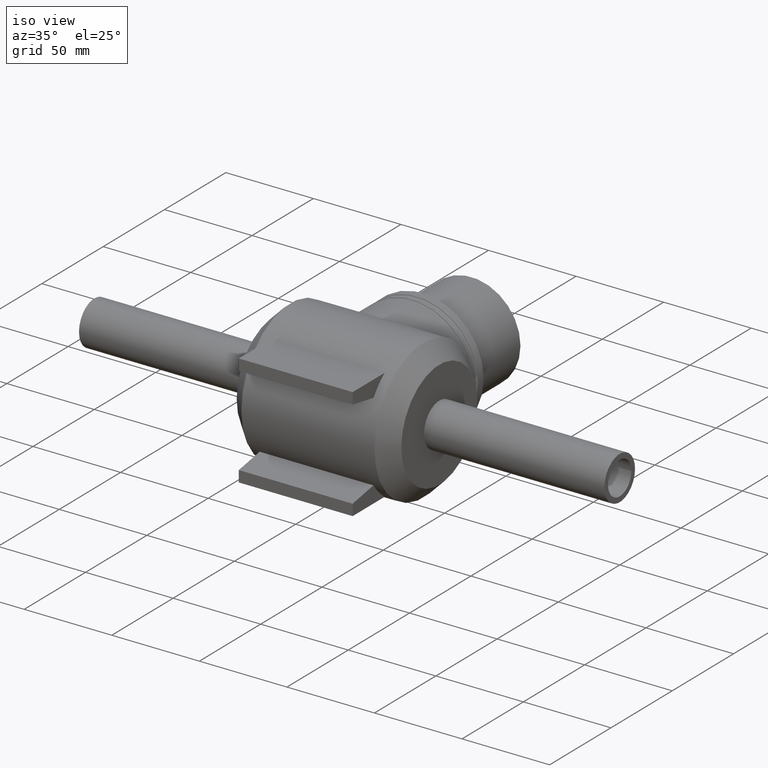
[diagram: clean part render]
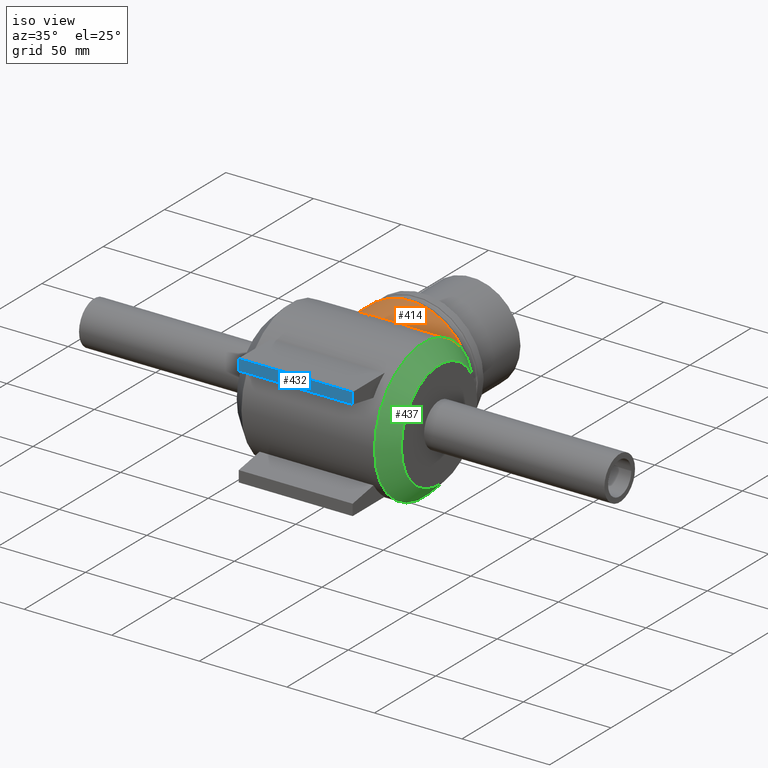
[diagram: same view with three faces highlighted in distinct colors, each labeled with its STEP entity id]
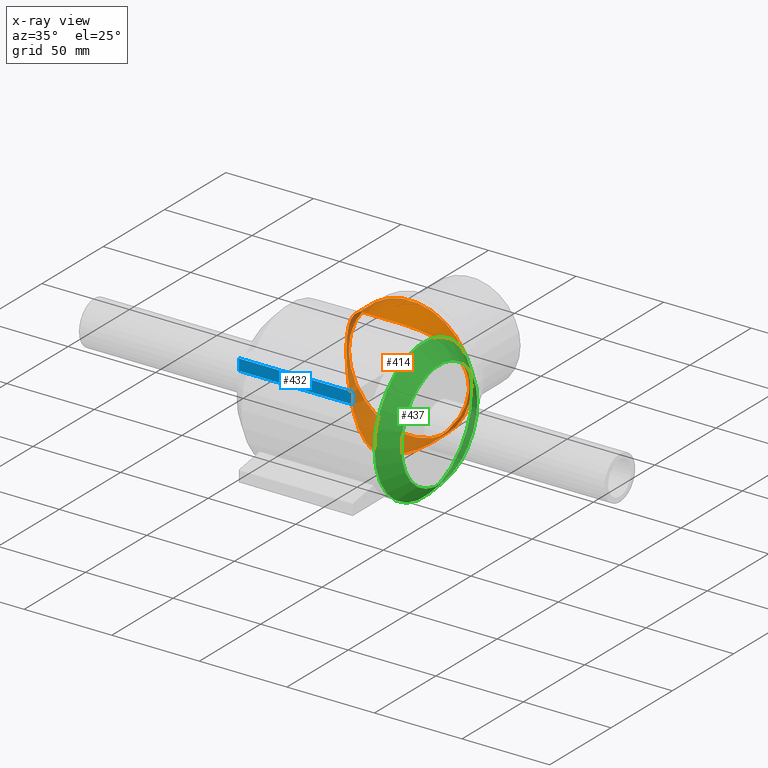
[diagram: x-ray of the same camera — body ghosted, the three highlighted faces saturated]
A machine part, iso view with three faces highlighted in distinct colors.
The next image is the same camera in x-ray (body ghosted, the three faces saturated) — at least one of them is partly hidden behind the body in this view.
Their STEP definitions:

[orange] entity #414 — the highlighted cylindrical surface (bore or boss wall) has radius 35 mm, axis along (0, 1, 0).
#78=FACE_BOUND('',#146,.T.);
#103=CYLINDRICAL_SURFACE('',#449,35.);
#113=FACE_OUTER_BOUND('',#145,.T.);
#145=EDGE_LOOP('',(#320));
#146=EDGE_LOOP('',(#321));
#201=B_SPLINE_CURVE_WITH_KNOTS('',3,(#808,#809,#810,#811,#812,#813,#814,
#815,#816,#817,#818,#819,#820,#821,#822,#823,#824,#825,#826,#827,#828,#829,
#830,#831,#832,#833,#834,#835,#836,#837,#838,#839),.UNSPECIFIED.,.T.,.F.,
(4,1,1,1,1,1,1,1,1,1,1,1,1,1,1,1,1,1,1,1,1,1,1,1,1,1,1,1,1,4),(11.6170748413418,
12.0319703713897,12.4468659014376,13.2766569615335,14.1064480216293,14.9362390817252,
15.766030141821,16.5958212019169,17.4256122620127,18.2554033221085,19.3617914022363,
20.4681794823641,21.5745675624919,22.1277616025558,22.6809556426197,23.2341496826836,
23.7873437227475,24.3405377628114,24.8937318028753,26.0001198830031,27.1065079631309,
28.2128960432587,29.3192841233864,30.4256722035142,31.532060283642,32.3618513437379,
33.1916424038337,34.0214334639296,34.4363289939775,34.8512245240254),
 .UNSPECIFIED.);
#204=CIRCLE('',#450,35.);
#230=VERTEX_POINT('',#806);
#231=VERTEX_POINT('',#873);
#269=EDGE_CURVE('',#230,#230,#201,.T.);
#271=EDGE_CURVE('',#231,#231,#204,.T.);
#320=ORIENTED_EDGE('',*,*,#271,.F.);
#321=ORIENTED_EDGE('',*,*,#269,.F.);
#414=ADVANCED_FACE('',(#113,#78),#103,.T.);
#449=AXIS2_PLACEMENT_3D('',#872,#510,#511);
#450=AXIS2_PLACEMENT_3D('',#874,#512,#513);
#510=DIRECTION('center_axis',(0.,1.,0.));
#511=DIRECTION('ref_axis',(-1.,0.,0.));
#512=DIRECTION('center_axis',(0.,1.,0.));
#513=DIRECTION('ref_axis',(1.,0.,0.));
#806=CARTESIAN_POINT('',(-9.71445146547012E-16,19.723082923316,-35.));
#808=CARTESIAN_POINT('Ctrl Pts',(6.35637005140549E-6,19.7228363058308,-35.0000651068193));
#809=CARTESIAN_POINT('Ctrl Pts',(1.41770960995416,19.7228296530212,-35.0000754093829));
#810=CARTESIAN_POINT('Ctrl Pts',(4.253032800528,20.0625833711809,-34.8252998175546));
#811=CARTESIAN_POINT('Ctrl Pts',(9.59639809311812,21.8643460229017,-33.8404280733019));
#812=CARTESIAN_POINT('Ctrl Pts',(15.5309686456312,25.3195107370692,-31.6506595587825));
#813=CARTESIAN_POINT('Ctrl Pts',(21.720745649299,29.9041496460569,-27.7663579441096));
#814=CARTESIAN_POINT('Ctrl Pts',(27.0620155121982,34.3289230444518,-22.6183211991996));
#815=CARTESIAN_POINT('Ctrl Pts',(31.3744934770868,38.1105298678421,-16.1778340679703));
#816=CARTESIAN_POINT('Ctrl Pts',(34.2973659476584,40.7560911850973,-8.50425736904313));
#817=CARTESIAN_POINT('Ctrl Pts',(35.3528286367807,41.7229546455388,-0.00124623633672408));
#818=CARTESIAN_POINT('Ctrl Pts',(34.1784034189927,40.6483248008202,9.45882450359534));
#819=CARTESIAN_POINT('Ctrl Pts',(30.2294812889465,37.0720997484268,18.6435933358859));
#820=CARTESIAN_POINT('Ctrl Pts',(23.7076232711279,31.4678422167857,26.3553599183604));
#821=CARTESIAN_POINT('Ctrl Pts',(16.9884063026758,26.2919560593155,30.9071145575778));
#822=CARTESIAN_POINT('Ctrl Pts',(10.8005799278557,22.5567780195498,33.4225659708655));
#823=CARTESIAN_POINT('Ctrl Pts',(5.66245122782071,20.3453707010791,34.6844884685977));
#824=CARTESIAN_POINT('Ctrl Pts',(-0.00159153167616837,19.4088630714124,
35.1586891707371));
#825=CARTESIAN_POINT('Ctrl Pts',(-5.66532800799418,20.3451734655569,34.6841881490309));
#826=CARTESIAN_POINT('Ctrl Pts',(-10.8031274678309,22.5584756826982,33.4219954523097));
#827=CARTESIAN_POINT('Ctrl Pts',(-16.9896160967816,26.2929826328218,30.9051689690559));
#828=CARTESIAN_POINT('Ctrl Pts',(-23.7110727205367,31.472775668957,26.3543692310231));
#829=CARTESIAN_POINT('Ctrl Pts',(-30.2284337427862,37.0700224412913,18.6382580152721));
#830=CARTESIAN_POINT('Ctrl Pts',(-34.5443831973892,40.9805194434947,8.62505270853596));
#831=CARTESIAN_POINT('Ctrl Pts',(-35.5154708632229,41.8728251956978,-2.93249664462132));
#832=CARTESIAN_POINT('Ctrl Pts',(-32.7245696075922,39.3173098619467,-13.9081908915108));
#833=CARTESIAN_POINT('Ctrl Pts',(-27.6498137560241,34.8159378456575,-22.0495995736556));
#834=CARTESIAN_POINT('Ctrl Pts',(-21.720837360846,29.9042733098407,-27.7672360175897));
#835=CARTESIAN_POINT('Ctrl Pts',(-15.5301035465875,25.3188104557689,-31.6506901019648));
#836=CARTESIAN_POINT('Ctrl Pts',(-9.59557007394189,21.8640698041167,-33.8407413009665));
#837=CARTESIAN_POINT('Ctrl Pts',(-4.25318672097668,20.0626232880384,-34.825238002173));
#838=CARTESIAN_POINT('Ctrl Pts',(-1.41769689721406,19.7228429586404,-35.0000548042558));
#839=CARTESIAN_POINT('Ctrl Pts',(6.35637005140549E-6,19.7228363058308,-35.0000651068193));
#872=CARTESIAN_POINT('Origin',(0.,21.65,0.));
#873=CARTESIAN_POINT('',(-35.,43.3,0.));
#874=CARTESIAN_POINT('Origin',(0.,43.3,0.));

[blue] entity #432 — the highlighted planar face has unit normal (0, -1, 0).
#27=PLANE('',#482);
#52=LINE('',#943,#72);
#54=LINE('',#947,#74);
#55=LINE('',#950,#75);
#56=LINE('',#951,#76);
#72=VECTOR('',#588,6.4);
#74=VECTOR('',#592,65.);
#75=VECTOR('',#595,6.4);
#76=VECTOR('',#596,65.);
#131=FACE_OUTER_BOUND('',#176,.T.);
#176=EDGE_LOOP('',(#378,#379,#380,#381));
#254=VERTEX_POINT('',#939);
#255=VERTEX_POINT('',#941);
#256=VERTEX_POINT('',#945);
#257=VERTEX_POINT('',#949);
#300=EDGE_CURVE('',#255,#254,#52,.T.);
#302=EDGE_CURVE('',#255,#256,#54,.T.);
#303=EDGE_CURVE('',#257,#256,#55,.T.);
#304=EDGE_CURVE('',#254,#257,#56,.T.);
#378=ORIENTED_EDGE('',*,*,#302,.T.);
#379=ORIENTED_EDGE('',*,*,#303,.F.);
#380=ORIENTED_EDGE('',*,*,#304,.F.);
#381=ORIENTED_EDGE('',*,*,#300,.F.);
#432=ADVANCED_FACE('',(#131),#27,.T.);
#482=AXIS2_PLACEMENT_3D('',#948,#593,#594);
#588=DIRECTION('',(0.,0.,1.));
#592=DIRECTION('',(1.,0.,0.));
#593=DIRECTION('center_axis',(0.,-1.,0.));
#594=DIRECTION('ref_axis',(0.,0.,-1.));
#595=DIRECTION('',(0.,0.,-1.));
#596=DIRECTION('',(1.,0.,0.));
#939=CARTESIAN_POINT('',(-32.5,-50.,32.));
#941=CARTESIAN_POINT('',(-32.5,-50.,25.6));
#943=CARTESIAN_POINT('',(-32.5,-50.,32.));
#945=CARTESIAN_POINT('',(32.5,-50.,25.6));
#947=CARTESIAN_POINT('',(0.,-50.,25.6));
#948=CARTESIAN_POINT('Origin',(0.,-50.,32.));
#949=CARTESIAN_POINT('',(32.5,-50.,32.));
#950=CARTESIAN_POINT('',(32.5,-50.,32.));
#951=CARTESIAN_POINT('',(0.,-50.,32.));

[green] entity #437 — the highlighted conical surface has half-angle 45 deg.
#37=CONICAL_SURFACE('',#489,35.5,45.);
#93=FACE_BOUND('',#184,.T.);
#136=FACE_OUTER_BOUND('',#183,.T.);
#183=EDGE_LOOP('',(#394));
#184=EDGE_LOOP('',(#395));
#206=CIRCLE('',#453,40.);
#221=CIRCLE('',#490,31.);
#233=VERTEX_POINT('',#878);
#260=VERTEX_POINT('',#962);
#273=EDGE_CURVE('',#233,#233,#206,.T.);
#308=EDGE_CURVE('',#260,#260,#221,.T.);
#394=ORIENTED_EDGE('',*,*,#308,.F.);
#395=ORIENTED_EDGE('',*,*,#273,.T.);
#437=ADVANCED_FACE('',(#136,#93),#37,.T.);
#453=AXIS2_PLACEMENT_3D('',#879,#518,#519);
#489=AXIS2_PLACEMENT_3D('',#961,#610,#611);
#490=AXIS2_PLACEMENT_3D('',#963,#612,#613);
#518=DIRECTION('center_axis',(1.,0.,0.));
#519=DIRECTION('ref_axis',(0.,0.,-1.));
#610=DIRECTION('center_axis',(-1.,0.,0.));
#611=DIRECTION('ref_axis',(0.,1.,0.));
#612=DIRECTION('center_axis',(1.,0.,0.));
#613=DIRECTION('ref_axis',(0.,0.,-1.));
#878=CARTESIAN_POINT('',(38.,40.,0.));
#879=CARTESIAN_POINT('Origin',(38.,0.,0.));
#961=CARTESIAN_POINT('Origin',(42.5,0.,0.));
#962=CARTESIAN_POINT('',(47.,31.,0.));
#963=CARTESIAN_POINT('Origin',(47.,0.,0.));